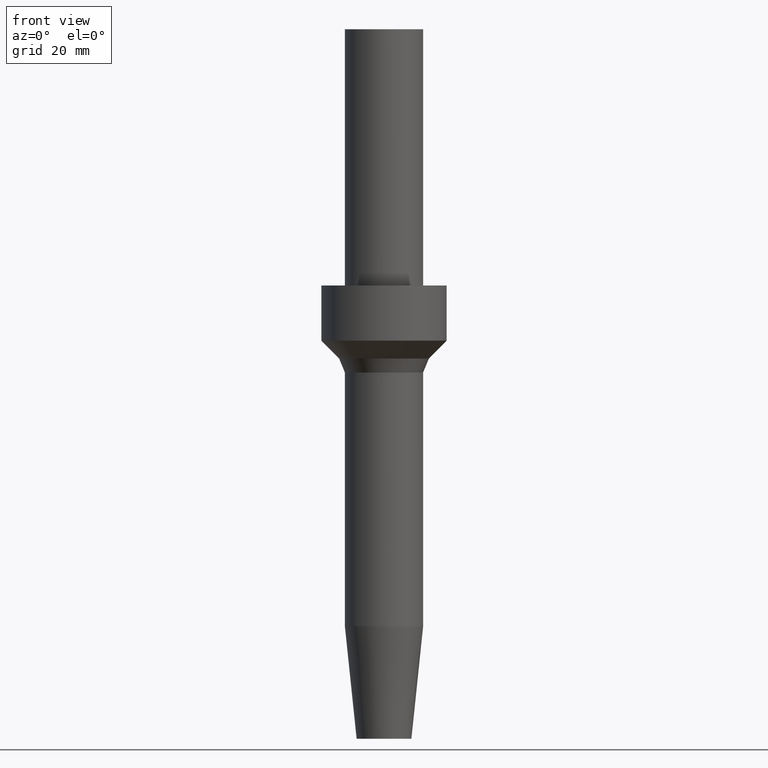
[diagram: clean part render]
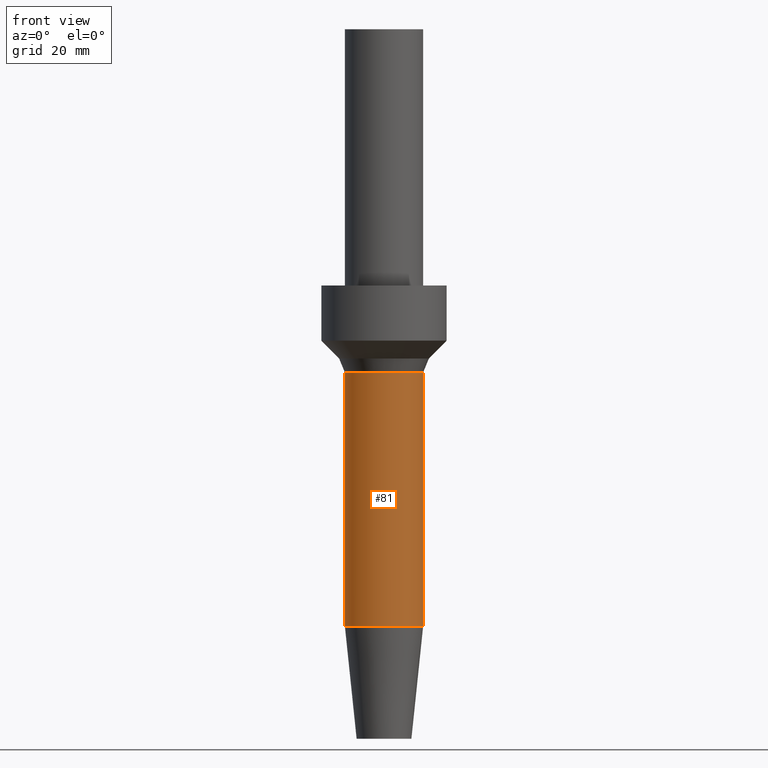
[diagram: same view with one face highlighted and labeled with its STEP entity id]
A machine part, front view. The second image highlights one B-rep face of the part: STEP entity #81.
In plain terms, the highlighted cylindrical surface (bore or boss wall) has radius 10 mm, axis along (-0, 0, 1).
Its self-contained STEP definition (entity closure, byte-faithful):
#81=ADVANCED_FACE('',(#102,#103),#104,.T.);
#102=FACE_BOUND('',#127,.T.);
#103=FACE_BOUND('',#128,.T.);
#104=CYLINDRICAL_SURFACE('',#129,10.0000000000004);
#127=EDGE_LOOP('',(#164));
#128=EDGE_LOOP('',(#165));
#129=AXIS2_PLACEMENT_3D('',#166,#167,#168);
#164=ORIENTED_EDGE('',*,*,#184,.F.);
#165=ORIENTED_EDGE('',*,*,#183,.T.);
#166=CARTESIAN_POINT('',(-3.71900818191982E-015,6.77821519788049E-015,60.7360127754246));
#167=DIRECTION('',(-6.12323399573677E-017,1.11601254151197E-016,1.0));
#168=DIRECTION('',(2.00645320308564E-033,1.0,-1.11601254151197E-016));
#183=EDGE_CURVE('',#196,#196,#197,.T.);
#184=EDGE_CURVE('',#198,#198,#199,.T.);
#196=VERTEX_POINT('',#212);
#197=CIRCLE('',#213,10.0000000000004);
#198=VERTEX_POINT('',#214);
#199=CIRCLE('',#215,10.0000000000004);
#212=CARTESIAN_POINT('',(-5.69025596761921E-015,10.0000000000004,92.9289321881376));
#213=AXIS2_PLACEMENT_3D('',#233,#234,#235);
#214=CARTESIAN_POINT('',(-1.74776039622044E-015,10.0000000000004,28.5430933627115));
#215=AXIS2_PLACEMENT_3D('',#236,#237,#238);
#233=CARTESIAN_POINT('',(-5.69025596761921E-015,1.03709853791277E-014,92.9289321881376));
#234=DIRECTION('',(6.12323399573676E-017,-1.11601254151197E-016,-1.0));
#235=DIRECTION('',(2.00645320308564E-033,1.0,-1.11601254151197E-016));
#236=CARTESIAN_POINT('',(-1.74776039622044E-015,3.18544501663334E-015,28.5430933627115));
#237=DIRECTION('',(6.12323399573677E-017,-1.11601254151197E-016,-1.0));
#238=DIRECTION('',(2.00645320308564E-033,1.0,-1.11601254151197E-016));